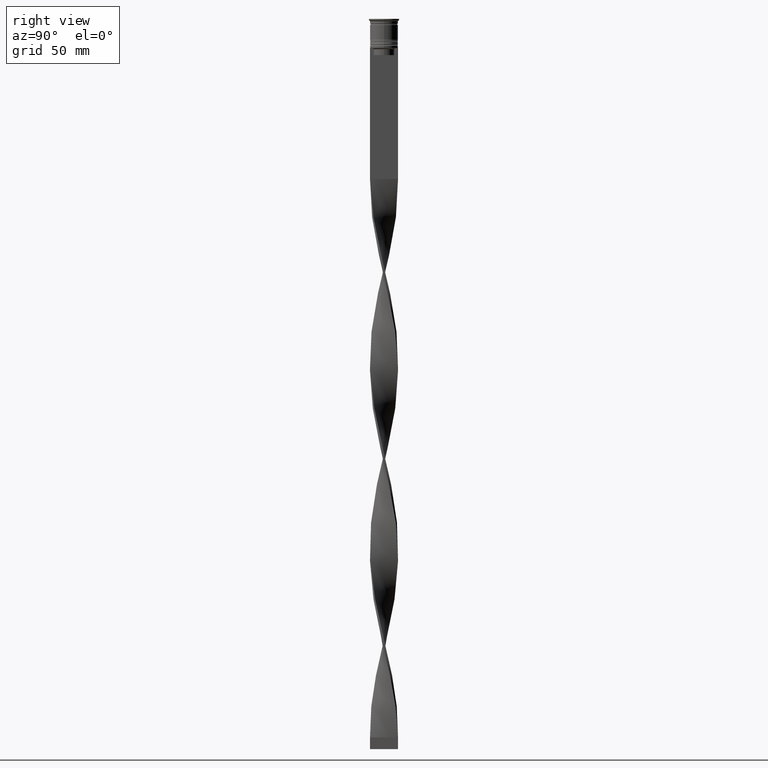
[diagram: clean part render]
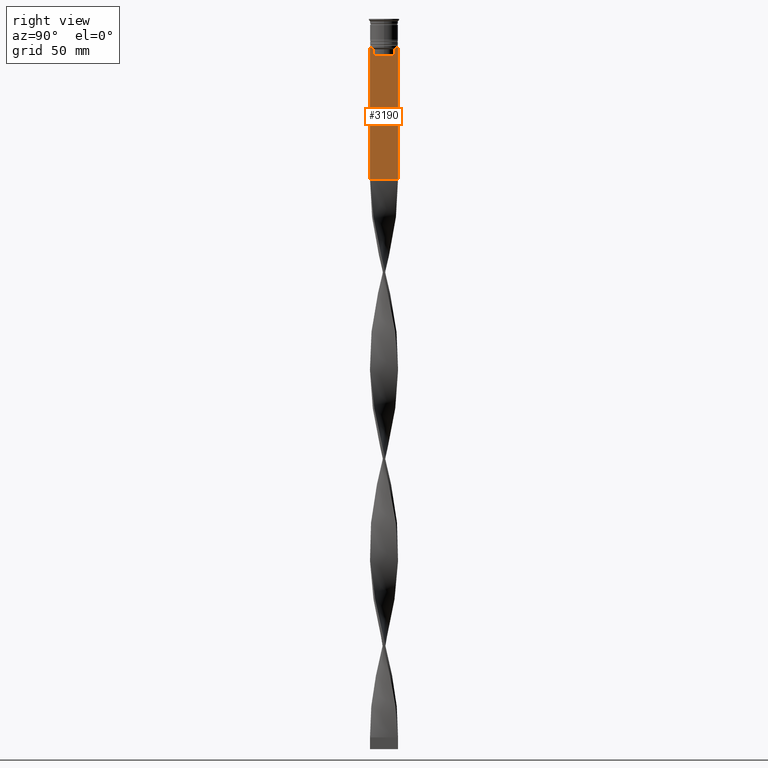
[diagram: same view with one face highlighted and labeled with its STEP entity id]
A machine part, right view. The second image highlights one B-rep face of the part: STEP entity #3190.
In plain terms, the highlighted planar face has unit normal (-1, 0, 0).
Its self-contained STEP definition (entity closure, byte-faithful):
#89 = CARTESIAN_POINT ( 'NONE',  ( 0.5000000000000002220, 4.874423042781576676, -12.50000000000000000 ) ) ;
#93 = CARTESIAN_POINT ( 'NONE',  ( 0.5000000000000002220, -6.000000000000000000, -68.50000000000000000 ) ) ;
#207 = CARTESIAN_POINT ( 'NONE',  ( 0.5000000000000002220, -6.000000000000000000, -12.50000000000000000 ) ) ;
#247 = EDGE_CURVE ( 'NONE', #3710, #1931, #3495, .T. ) ;
#300 = LINE ( 'NONE', #594, #3286 ) ;
#321 = VERTEX_POINT ( 'NONE', #3954 ) ;
#338 = ORIENTED_EDGE ( 'NONE', *, *, #1068, .F. ) ;
#362 = ORIENTED_EDGE ( 'NONE', *, *, #3976, .T. ) ;
#380 = CARTESIAN_POINT ( 'NONE',  ( 0.5000000000000002220, 4.539195634199896467, -12.83338923751318816 ) ) ;
#498 = VECTOR ( 'NONE', #719, 1000.000000000000000 ) ;
#510 = CARTESIAN_POINT ( 'NONE',  ( 0.5000000000000002220, 6.000000000000000888, -0.4584054212077061097 ) ) ;
#520 = EDGE_CURVE ( 'NONE', #1760, #3907, #3665, .T. ) ;
#531 = CARTESIAN_POINT ( 'NONE',  ( 0.5000000000000002220, -6.000000000000000000, -12.50000000000000000 ) ) ;
#535 = CARTESIAN_POINT ( 'NONE',  ( 0.5000000000000002220, -6.000000000000000000, -12.50000000000000000 ) ) ;
#594 = CARTESIAN_POINT ( 'NONE',  ( 0.5000000000000002220, -4.371498598878878816, 0.000000000000000000 ) ) ;
#653 = ORIENTED_EDGE ( 'NONE', *, *, #1527, .T. ) ;
#676 = CARTESIAN_POINT ( 'NONE',  ( 0.5000000000000002220, -4.874423042781576676, -12.50000000000000000 ) ) ;
#719 = DIRECTION ( 'NONE',  ( 0.000000000000000000, 1.000000000000000000, 0.000000000000000000 ) ) ;
#776 = EDGE_CURVE ( 'NONE', #2861, #321, #3605, .T. ) ;
#912 = VECTOR ( 'NONE', #1499, 1000.000000000000000 ) ;
#934 = DIRECTION ( 'NONE',  ( -0.000000000000000000, -0.000000000000000000, 1.000000000000000000 ) ) ;
#973 = ORIENTED_EDGE ( 'NONE', *, *, #1117, .T. ) ;
#978 = CARTESIAN_POINT ( 'NONE',  ( 0.5000000000000002220, 4.371498598878878816, -13.00000000000000178 ) ) ;
#1015 = CARTESIAN_POINT ( 'NONE',  ( 0.5000000000000002220, -6.000000000000000000, -0.4584054212077061097 ) ) ;
#1045 = DIRECTION ( 'NONE',  ( 0.000000000000000000, 0.000000000000000000, -1.000000000000000000 ) ) ;
#1057 = CARTESIAN_POINT ( 'NONE',  ( 0.5000000000000002220, -4.874423042781576676, -12.50000000000000000 ) ) ;
#1061 = ORIENTED_EDGE ( 'NONE', *, *, #1876, .T. ) ;
#1068 = EDGE_CURVE ( 'NONE', #1118, #321, #3359, .T. ) ;
#1117 = EDGE_CURVE ( 'NONE', #2567, #3427, #1538, .T. ) ;
#1118 = VERTEX_POINT ( 'NONE', #3418 ) ;
#1136 = EDGE_CURVE ( 'NONE', #3427, #2937, #300, .T. ) ;
#1220 = CARTESIAN_POINT ( 'NONE',  ( 0.5000000000000002220, -5.878775382679627626, -12.50000000000000000 ) ) ;
#1264 = EDGE_CURVE ( 'NONE', #2612, #3710, #2466, .T. ) ;
#1295 = CARTESIAN_POINT ( 'NONE',  ( 0.5000000000000002220, -6.000000000000000000, -12.50000000000000000 ) ) ;
#1394 = ORIENTED_EDGE ( 'NONE', *, *, #247, .T. ) ;
#1437 = LINE ( 'NONE', #207, #912 ) ;
#1473 = EDGE_CURVE ( 'NONE', #2043, #2567, #2887, .T. ) ;
#1479 = DIRECTION ( 'NONE',  ( 0.000000000000000000, 0.000000000000000000, 1.000000000000000000 ) ) ;
#1498 = VECTOR ( 'NONE', #3921, 1000.000000000000000 ) ;
#1499 = DIRECTION ( 'NONE',  ( 0.000000000000000000, -1.000000000000000000, 0.000000000000000000 ) ) ;
#1527 = EDGE_CURVE ( 'NONE', #1931, #2861, #1632, .T. ) ;
#1538 = LINE ( 'NONE', #3148, #4079 ) ;
#1630 = CARTESIAN_POINT ( 'NONE',  ( 0.5000000000000002220, 4.706831415367288329, -12.66671683478479160 ) ) ;
#1632 = LINE ( 'NONE', #1015, #4083 ) ;
#1760 = VERTEX_POINT ( 'NONE', #3909 ) ;
#1811 = DIRECTION ( 'NONE',  ( 0.000000000000000000, -1.000000000000000000, 0.000000000000000000 ) ) ;
#1876 = EDGE_CURVE ( 'NONE', #1118, #1760, #1437, .T. ) ;
#1883 = ORIENTED_EDGE ( 'NONE', *, *, #776, .T. ) ;
#1931 = VERTEX_POINT ( 'NONE', #535 ) ;
#2037 = B_SPLINE_CURVE_WITH_KNOTS ( 'NONE', 3,
 ( #2562, #3898, #3255, #1057 ),
 .UNSPECIFIED., .F., .F.,
 ( 4, 4 ),
 ( 0.02089901220910808308, 0.02161421017310286019 ),
 .UNSPECIFIED. ) ;
#2043 = VERTEX_POINT ( 'NONE', #978 ) ;
#2128 = FACE_OUTER_BOUND ( 'NONE', #3145, .T. ) ;
#2241 = AXIS2_PLACEMENT_3D ( 'NONE', #2789, #3740, #1479 ) ;
#2253 = DIRECTION ( 'NONE',  ( 0.000000000000000000, -1.000000000000000000, 0.000000000000000000 ) ) ;
#2275 = DIRECTION ( 'NONE',  ( 0.000000000000000000, 0.000000000000000000, -1.000000000000000000 ) ) ;
#2336 = CARTESIAN_POINT ( 'NONE',  ( 0.5000000000000002220, 4.874423042781576676, -12.50000000000000000 ) ) ;
#2355 = VECTOR ( 'NONE', #2253, 1000.000000000000000 ) ;
#2404 = ORIENTED_EDGE ( 'NONE', *, *, #1136, .T. ) ;
#2408 = ORIENTED_EDGE ( 'NONE', *, *, #4001, .T. ) ;
#2466 = LINE ( 'NONE', #531, #3291 ) ;
#2489 = VECTOR ( 'NONE', #1045, 1000.000000000000000 ) ;
#2562 = CARTESIAN_POINT ( 'NONE',  ( 0.5000000000000002220, -4.371498598878878816, -13.00000000000000178 ) ) ;
#2567 = VERTEX_POINT ( 'NONE', #4113 ) ;
#2612 = VERTEX_POINT ( 'NONE', #676 ) ;
#2724 = B_SPLINE_CURVE_WITH_KNOTS ( 'NONE', 3,
 ( #2336, #1630, #380, #3601 ),
 .UNSPECIFIED., .F., .F.,
 ( 4, 4 ),
 ( 0.008336552452178421987, 0.009045730124312839626 ),
 .UNSPECIFIED. ) ;
#2789 = CARTESIAN_POINT ( 'NONE',  ( 0.5000000000000002220, -6.000000000000000000, -0.4584054212077061097 ) ) ;
#2861 = VERTEX_POINT ( 'NONE', #3461 ) ;
#2866 = DIRECTION ( 'NONE',  ( 0.000000000000000000, 0.000000000000000000, -1.000000000000000000 ) ) ;
#2887 = LINE ( 'NONE', #3859, #3553 ) ;
#2937 = VERTEX_POINT ( 'NONE', #2982 ) ;
#2982 = CARTESIAN_POINT ( 'NONE',  ( 0.5000000000000002220, -4.371498598878878816, -13.00000000000000178 ) ) ;
#2993 = CARTESIAN_POINT ( 'NONE',  ( 0.5000000000000002220, -6.000000000000000000, -12.50000000000000000 ) ) ;
#3088 = ORIENTED_EDGE ( 'NONE', *, *, #1473, .T. ) ;
#3134 = CARTESIAN_POINT ( 'NONE',  ( 0.5000000000000002220, -4.371498598878878816, -15.50000000000000000 ) ) ;
#3145 = EDGE_LOOP ( 'NONE', ( #3783, #362, #3088, #973, #2404, #2408, #3172, #1394, #653, #1883, #338, #1061 ) ) ;
#3148 = CARTESIAN_POINT ( 'NONE',  ( 0.5000000000000002220, 4.399999999999999467, -15.50000000000000000 ) ) ;
#3172 = ORIENTED_EDGE ( 'NONE', *, *, #1264, .T. ) ;
#3190 = ADVANCED_FACE ( 'NONE', ( #2128 ), #3696, .F. ) ;
#3255 = CARTESIAN_POINT ( 'NONE',  ( 0.5000000000000002220, -4.706831372970962768, -12.66671687695981774 ) ) ;
#3286 = VECTOR ( 'NONE', #934, 1000.000000000000000 ) ;
#3291 = VECTOR ( 'NONE', #1811, 1000.000000000000000 ) ;
#3359 = LINE ( 'NONE', #510, #2489 ) ;
#3418 = CARTESIAN_POINT ( 'NONE',  ( 0.5000000000000002220, 6.000000000000000888, -12.50000000000000000 ) ) ;
#3427 = VERTEX_POINT ( 'NONE', #3134 ) ;
#3461 = CARTESIAN_POINT ( 'NONE',  ( 0.5000000000000002220, -5.999999999999999112, -68.50000000000000000 ) ) ;
#3495 = LINE ( 'NONE', #1295, #2355 ) ;
#3553 = VECTOR ( 'NONE', #2866, 1000.000000000000000 ) ;
#3601 = CARTESIAN_POINT ( 'NONE',  ( 0.5000000000000002220, 4.371498598878878816, -13.00000000000000178 ) ) ;
#3605 = LINE ( 'NONE', #93, #498 ) ;
#3665 = LINE ( 'NONE', #2993, #1498 ) ;
#3696 = PLANE ( 'NONE',  #2241 ) ;
#3710 = VERTEX_POINT ( 'NONE', #1220 ) ;
#3717 = DIRECTION ( 'NONE',  ( 0.000000000000000000, -1.000000000000000000, 0.000000000000000000 ) ) ;
#3740 = DIRECTION ( 'NONE',  ( -1.000000000000000000, 0.000000000000000000, 0.000000000000000000 ) ) ;
#3783 = ORIENTED_EDGE ( 'NONE', *, *, #520, .T. ) ;
#3859 = CARTESIAN_POINT ( 'NONE',  ( 0.5000000000000002220, 4.371498598878878816, 0.000000000000000000 ) ) ;
#3898 = CARTESIAN_POINT ( 'NONE',  ( 0.5000000000000002220, -4.539195586926423331, -12.83338928448044314 ) ) ;
#3907 = VERTEX_POINT ( 'NONE', #89 ) ;
#3909 = CARTESIAN_POINT ( 'NONE',  ( 0.5000000000000002220, 5.878775382679627626, -12.50000000000000000 ) ) ;
#3921 = DIRECTION ( 'NONE',  ( 0.000000000000000000, -1.000000000000000000, 0.000000000000000000 ) ) ;
#3954 = CARTESIAN_POINT ( 'NONE',  ( 0.5000000000000002220, 6.000000000000000888, -68.50000000000000000 ) ) ;
#3976 = EDGE_CURVE ( 'NONE', #3907, #2043, #2724, .T. ) ;
#4001 = EDGE_CURVE ( 'NONE', #2937, #2612, #2037, .T. ) ;
#4079 = VECTOR ( 'NONE', #3717, 1000.000000000000000 ) ;
#4083 = VECTOR ( 'NONE', #2275, 1000.000000000000000 ) ;
#4113 = CARTESIAN_POINT ( 'NONE',  ( 0.5000000000000002220, 4.371498598878878816, -15.50000000000000000 ) ) ;